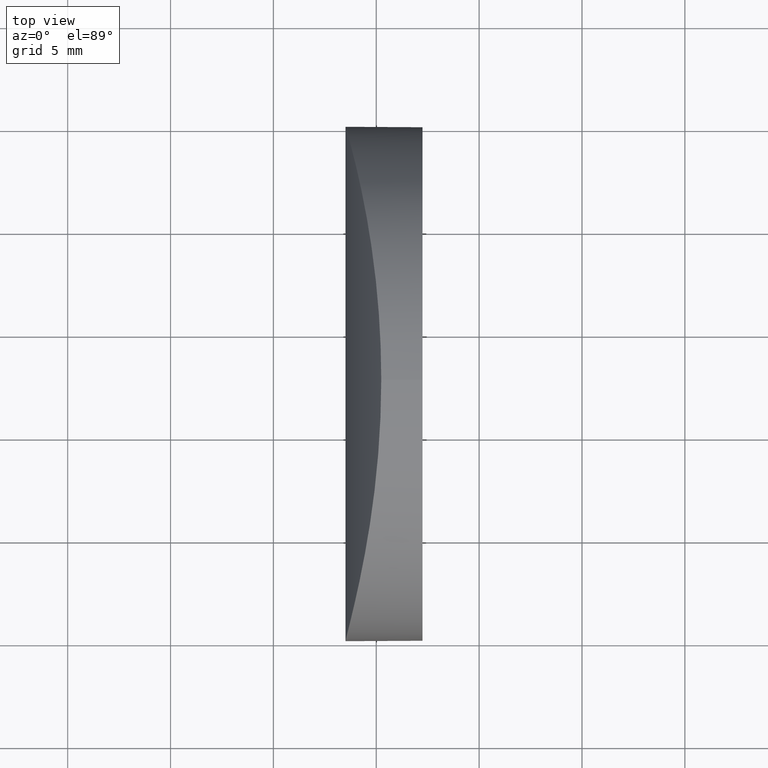
[diagram: clean part render]
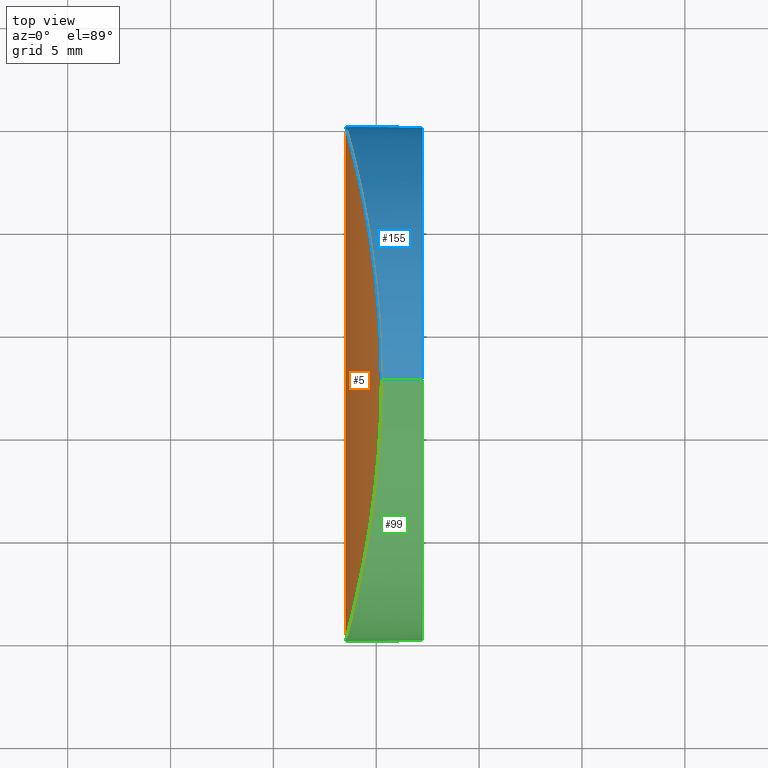
[diagram: same view with three faces highlighted in distinct colors, each labeled with its STEP entity id]
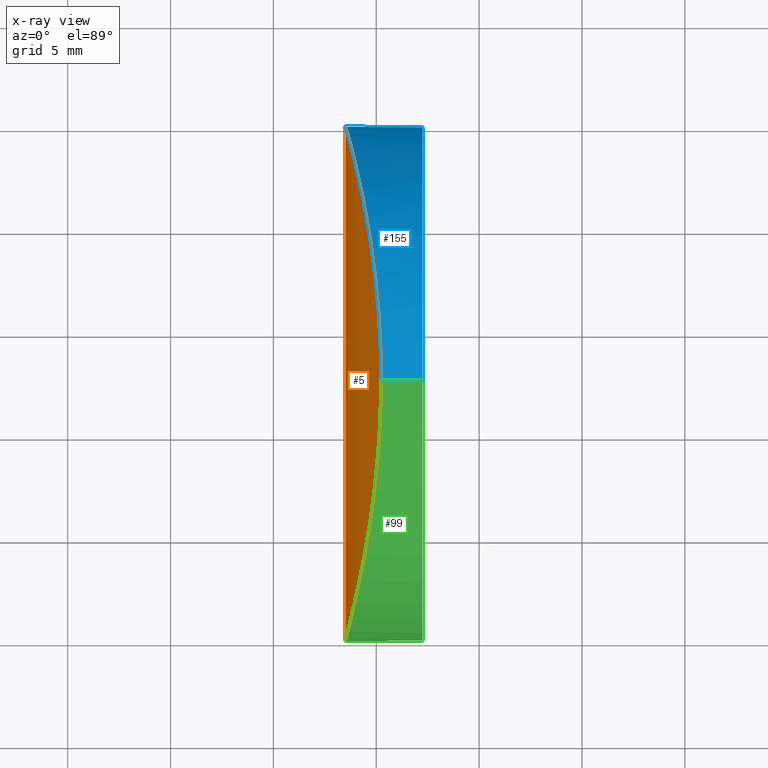
[diagram: x-ray of the same camera — body ghosted, the three highlighted faces saturated]
A machine part, top view with three faces highlighted in distinct colors.
The next image is the same camera in x-ray (body ghosted, the three faces saturated) — at least one of them is partly hidden behind the body in this view.
Their STEP definitions:

[orange] entity #5 — the highlighted cylindrical surface (partial cylindrical patch) has radius 45.85 mm, axis along (-0, -1, -0).
#1 = CARTESIAN_POINT ( 'NONE',  ( -40.40981074628637500, 20.14117542189356800, 9.926530071393383300 ) ) ;
#3 = CARTESIAN_POINT ( 'NONE',  ( -41.47227541527333700, 0.08187468753290343100, 1.649462328477295600 ) ) ;
#4 = CARTESIAN_POINT ( 'NONE',  ( -40.74769843737202300, 21.90019346376650200, 8.249463201825319600 ) ) ;
#5 = ADVANCED_FACE ( 'NONE', ( #136 ), #42, .T. ) ;
#7 = AXIS2_PLACEMENT_3D ( 'NONE', #89, #149, #95 ) ;
#10 = CARTESIAN_POINT ( 'NONE',  ( -41.47231174884528600, 24.91825874518829300, -1.648477865115701000 ) ) ;
#11 = CARTESIAN_POINT ( 'NONE',  ( -40.85875126190188700, 22.41935377838573700, 7.617328986838704600 ) ) ;
#12 = CARTESIAN_POINT ( 'NONE',  ( -41.40713014909924500, 0.3252364939609298500, 2.862738921787991100 ) ) ;
#14 = CARTESIAN_POINT ( 'NONE',  ( -40.69146227948319700, 3.372644177595744500, -8.550186714359906400 ) ) ;
#16 = CARTESIAN_POINT ( 'NONE',  ( -40.19945308360257000, 18.76669924367405800, 10.82332272746035100 ) ) ;
#19 = CARTESIAN_POINT ( 'NONE',  ( -41.15914421943207200, 23.70795793760327200, -5.549559079769303500 ) ) ;
#20 = EDGE_LOOP ( 'NONE', ( #202, #66 ) ) ;
#22 = CARTESIAN_POINT ( 'NONE',  ( -40.40949954594644600, 4.884032656493674900, 9.920395114810899500 ) ) ;
#23 = CARTESIAN_POINT ( 'NONE',  ( -40.05971939913672500, 17.68190137589219200, 11.38258031456807700 ) ) ;
#24 = CARTESIAN_POINT ( 'NONE',  ( -39.75797396823635000, 12.50000000000000000, -12.49999999999999500 ) ) ;
#28 = CARTESIAN_POINT ( 'NONE',  ( -40.25045087620494400, 19.11856090559292200, 10.61192922189760100 ) ) ;
#29 = CARTESIAN_POINT ( 'NONE',  ( -41.49478008651964700, 5.714241159037323700E-005, 0.8303810537890299300 ) ) ;
#30 = CARTESIAN_POINT ( 'NONE',  ( -40.57787232470743500, 3.950853832423538900, 9.128328069932987200 ) ) ;
#31 = CARTESIAN_POINT ( 'NONE',  ( -40.85883580374382300, 2.580260867320088600, -7.616828507646357800 ) ) ;
#33 = CARTESIAN_POINT ( 'NONE',  ( -41.31902395339513100, 24.33959316536583700, 4.030280961046920600 ) ) ;
#35 = CARTESIAN_POINT ( 'NONE',  ( -41.28287526412447800, 0.8002181926572279300, -4.419565303612265500 ) ) ;
#37 = CARTESIAN_POINT ( 'NONE',  ( -39.87526876755185200, 9.257167130157817800, 12.07903556383880300 ) ) ;
#39 = CARTESIAN_POINT ( 'NONE',  ( -39.78138363703382700, 14.14865785695464800, 12.41822967507822100 ) ) ;
#40 = CARTESIAN_POINT ( 'NONE',  ( -40.10421450853452500, 6.950769772324457900, -11.20811745881100100 ) ) ;
#41 = CARTESIAN_POINT ( 'NONE',  ( -39.75797396823634200, 12.50000000000000200, 12.50000000000001600 ) ) ;
#42 = CYLINDRICAL_SURFACE ( 'NONE', #7, 45.84999999999999400 ) ;
#45 = CARTESIAN_POINT ( 'NONE',  ( -39.75797396823634200, 12.50000000000000200, 12.50000000000001600 ) ) ;
#48 = CARTESIAN_POINT ( 'NONE',  ( -39.75797396823635000, 12.50000000000000000, -12.49999999999999500 ) ) ;
#49 = CARTESIAN_POINT ( 'NONE',  ( -41.16360696646697900, 1.271374896589286600, -5.553177967285372500 ) ) ;
#50 = CARTESIAN_POINT ( 'NONE',  ( -39.94159322711093600, 16.54799810164796600, 11.83349651512302900 ) ) ;
#51 = VERTEX_POINT ( 'NONE', #45 ) ;
#52 = CARTESIAN_POINT ( 'NONE',  ( -39.97724646174325600, 16.91981037440734100, -11.69968487437510500 ) ) ;
#53 = CARTESIAN_POINT ( 'NONE',  ( -39.78137013568643700, 10.85553990421994900, 12.41824416496784500 ) ) ;
#54 = CARTESIAN_POINT ( 'NONE',  ( -41.31742595372583800, 24.33342928221472300, -4.048204877943386600 ) ) ;
#55 = CARTESIAN_POINT ( 'NONE',  ( -39.93990403007954600, 8.470379767237860200, 11.83981528377556300 ) ) ;
#56 = CARTESIAN_POINT ( 'NONE',  ( -39.84786806113012900, 9.654126672233067200, 12.17857808979142400 ) ) ;
#57 = CARTESIAN_POINT ( 'NONE',  ( -40.91348439585242900, 2.334848731616490500, -7.286003299864026900 ) ) ;
#58 = CARTESIAN_POINT ( 'NONE',  ( -39.87687106877349700, 9.235566916318399300, -12.07316954048455300 ) ) ;
#59 = CARTESIAN_POINT ( 'NONE',  ( -39.78137270377940400, 14.14454954794391400, -12.41823527853628800 ) ) ;
#60 = B_SPLINE_CURVE_WITH_KNOTS ( 'NONE', 3,
 ( #164, #172, #59, #204, #120, #199, #52, #137, #131, #228, #72, #187, #80, #197, #166, #203, #106, #19, #97, #163, #54, #213, #100, #10, #84, #111, #61, #231, #181, #33, #90, #183, #116, #157, #11, #4, #220, #170, #1, #28, #16, #174, #23, #210, #50, #121, #64, #39, #161, #41 ),
 .UNSPECIFIED., .F., .F.,
 ( 4, 2, 2, 2, 2, 2, 2, 2, 2, 2, 2, 2, 2, 2, 2, 2, 2, 2, 2, 2, 2, 2, 2, 2, 4 ),
 ( -0.01962009222505995900, -0.01716755213092220600, -0.01594128208385332800, -0.01471501203678445000, -0.01226247194264671100, -0.01103620189557784300, -0.009809931848508975800, -0.007357391754371254300, -0.006131121707302393500, -0.004904851660233534500, -0.003678581613164675500, -0.002452311566095818200, 2.285280418963531200E-007, 0.002452768622179610900, 0.003679038669248464700, 0.004905308716317325500, 0.007357848810455043500, 0.008584118857523904300, 0.009810388904592761600, 0.01226292899873049000, 0.01348919904579935400, 0.01471546909286821800, 0.01594173913993708300, 0.01716800918700594700, 0.01962054928114367500 ),
 .UNSPECIFIED. ) ;
#61 = CARTESIAN_POINT ( 'NONE',  ( -41.47230694198130900, 24.91821255446808100, 1.644755517760426900 ) ) ;
#62 = CARTESIAN_POINT ( 'NONE',  ( -40.40987118050991700, 4.858468963129567400, -9.926259674588340700 ) ) ;
#63 = CARTESIAN_POINT ( 'NONE',  ( -41.28159879303637300, 0.8052067444958054300, 4.432507401824517000 ) ) ;
#64 = CARTESIAN_POINT ( 'NONE',  ( -39.84886682178839800, 15.36189632125278400, 12.17496097301642200 ) ) ;
#66 = ORIENTED_EDGE ( 'NONE', *, *, #153, .F. ) ;
#68 = CARTESIAN_POINT ( 'NONE',  ( -41.06931421452763000, 1.655237711688303200, -6.269426488045443300 ) ) ;
#72 = CARTESIAN_POINT ( 'NONE',  ( -40.40956047370495000, 20.11632567045936800, -9.920120848431357900 ) ) ;
#73 = CARTESIAN_POINT ( 'NONE',  ( -41.20245327762449300, 1.117972206545015300, 5.183122077014372700 ) ) ;
#75 = CARTESIAN_POINT ( 'NONE',  ( -39.78138620795968400, 10.85125223138091700, -12.41822078773012100 ) ) ;
#80 = CARTESIAN_POINT ( 'NONE',  ( -40.57794357491967200, 21.04952072279704800, -9.127978223416684900 ) ) ;
#84 = CARTESIAN_POINT ( 'NONE',  ( -41.49479986034122400, 25.00001538796611900, -0.8293385852175854100 ) ) ;
#86 = CARTESIAN_POINT ( 'NONE',  ( -40.74678994590863100, 3.090777050949759600, 8.268834118708671400 ) ) ;
#87 = CARTESIAN_POINT ( 'NONE',  ( -41.31909612708445700, 0.6601286196088498300, -4.029465515363149600 ) ) ;
#89 = CARTESIAN_POINT ( 'NONE',  ( 4.355204334851265500, 25.00000000000000000, 4.286263797015675000E-017 ) ) ;
#90 = CARTESIAN_POINT ( 'NONE',  ( -41.28279941076599600, 24.19948610446284600, 4.420345653005238500 ) ) ;
#91 = VERTEX_POINT ( 'NONE', #48 ) ;
#92 = CARTESIAN_POINT ( 'NONE',  ( -39.75797396823634200, 11.67038368286444500, -12.49999999999999500 ) ) ;
#95 = DIRECTION ( 'NONE',  ( 0.0000000000000000000, 0.0000000000000000000, -1.000000000000000000 ) ) ;
#97 = CARTESIAN_POINT ( 'NONE',  ( -41.20253431121349800, 23.88235193470146800, -5.182412026168286400 ) ) ;
#100 = CARTESIAN_POINT ( 'NONE',  ( -41.40718704324859100, 24.67497719125718100, -2.861832939904598300 ) ) ;
#102 = CARTESIAN_POINT ( 'NONE',  ( -40.05975007251299000, 7.317834524646043400, -11.38246086677629000 ) ) ;
#104 = CARTESIAN_POINT ( 'NONE',  ( -40.25049936943779000, 5.881111828434301400, -10.61172588700871200 ) ) ;
#105 = CARTESIAN_POINT ( 'NONE',  ( -40.09973824098674600, 6.947208656182929200, 11.22879503584278500 ) ) ;
#106 = CARTESIAN_POINT ( 'NONE',  ( -41.06584986205416500, 23.32287213120948300, -6.267484817885328000 ) ) ;
#110 = CARTESIAN_POINT ( 'NONE',  ( -40.85858208098679300, 2.574679324485717100, 7.642767304390766900 ) ) ;
#111 = CARTESIAN_POINT ( 'NONE',  ( -41.49479146878331900, 24.99998460773172200, 0.8298023829748678600 ) ) ;
#112 = CARTESIAN_POINT ( 'NONE',  ( -39.75797396823633500, 11.67042920813946500, 12.50000000000001800 ) ) ;
#116 = CARTESIAN_POINT ( 'NONE',  ( -41.06922826269242000, 23.34440283197263000, 6.270042877520865000 ) ) ;
#120 = CARTESIAN_POINT ( 'NONE',  ( -39.87528133739007100, 15.74300675335200200, -12.07898967575158100 ) ) ;
#121 = CARTESIAN_POINT ( 'NONE',  ( -39.87685832972481800, 15.76425825394837300, 12.07321607757867800 ) ) ;
#122 = CARTESIAN_POINT ( 'NONE',  ( -41.31735428740778800, 0.6668471374472975100, 4.049010135171215600 ) ) ;
#123 = CARTESIAN_POINT ( 'NONE',  ( -39.94161246205185000, 8.451789631913213100, -11.83342464913828700 ) ) ;
#131 = CARTESIAN_POINT ( 'NONE',  ( -40.19618576003333000, 18.76912270463904200, -10.84492621115832200 ) ) ;
#136 = FACE_OUTER_BOUND ( 'NONE', #20, .T. ) ;
#137 = CARTESIAN_POINT ( 'NONE',  ( -40.09977285696967900, 18.05307280506033900, -11.22865896014750000 ) ) ;
#139 = CARTESIAN_POINT ( 'NONE',  ( -41.40817523479380900, 0.3213164059160815700, -2.845433120606741400 ) ) ;
#143 = CARTESIAN_POINT ( 'NONE',  ( -40.52252586448792500, 4.232353852044420600, -9.410276075066512600 ) ) ;
#148 = CARTESIAN_POINT ( 'NONE',  ( -41.38170215612424800, 0.4208672918432435600, -3.242483563943523000 ) ) ;
#149 = DIRECTION ( 'NONE',  ( -0.0000000000000000000, -1.000000000000000000, -0.0000000000000000000 ) ) ;
#152 = CARTESIAN_POINT ( 'NONE',  ( -39.84887664684158200, 9.637948890873355300, -12.17492536457951300 ) ) ;
#153 = EDGE_CURVE ( 'NONE', #51, #91, #169, .T. ) ;
#156 = CARTESIAN_POINT ( 'NONE',  ( -41.47234297407649000, 0.08165509620483903100, -1.643777589883400600 ) ) ;
#157 = CARTESIAN_POINT ( 'NONE',  ( -40.91339909885060400, 22.66477155823447700, 7.286531876408656000 ) ) ;
#161 = CARTESIAN_POINT ( 'NONE',  ( -39.75797396823636400, 13.32957079114168600, 12.50000000000002300 ) ) ;
#163 = CARTESIAN_POINT ( 'NONE',  ( -41.28167410785922400, 24.19508696064257300, -4.431734531465560100 ) ) ;
#164 = CARTESIAN_POINT ( 'NONE',  ( -39.75797396823635000, 12.50000000000000000, -12.49999999999999500 ) ) ;
#166 = CARTESIAN_POINT ( 'NONE',  ( -40.85866643641490000, 22.42570457094309000, -7.642274373346864100 ) ) ;
#169 = B_SPLINE_CURVE_WITH_KNOTS ( 'NONE', 3,
 ( #224, #112, #53, #56, #37, #55, #205, #105, #198, #189, #22, #218, #30, #86, #110, #211, #191, #212, #73, #63, #122, #227, #12, #3, #29, #223, #156, #139, #148, #87, #35, #49, #68, #57, #31, #214, #14, #143, #62, #104, #221, #40, #102, #207, #123, #58, #152, #75, #92, #24 ),
 .UNSPECIFIED., .F., .F.,
 ( 4, 2, 2, 2, 2, 2, 2, 2, 2, 2, 2, 2, 2, 2, 2, 2, 2, 2, 2, 2, 2, 2, 2, 2, 4 ),
 ( 0.01962054928114367500, 0.02207308937740664100, 0.02329935942553812400, 0.02452562947366960400, 0.02697816956993256600, 0.02820443961806404600, 0.02943070966619552500, 0.03188324976245848800, 0.03310951981058996700, 0.03433578985872144700, 0.03556205990685292600, 0.03678832995498440600, 0.03924087005124737200, 0.04169341014751033700, 0.04291968019564182400, 0.04414595024377330300, 0.04659849034003626900, 0.04782476038816774200, 0.04905103043629922100, 0.05150357053256218700, 0.05272984058069367400, 0.05395611062882514600, 0.05518238067695663300, 0.05640865072508811900, 0.05886119082135107800 ),
 .UNSPECIFIED. ) ;
#170 = CARTESIAN_POINT ( 'NONE',  ( -40.52245788481211300, 20.76727667160644200, 9.410596722587605700 ) ) ;
#172 = CARTESIAN_POINT ( 'NONE',  ( -39.75797396823635000, 13.32961631641665300, -12.49999999999999300 ) ) ;
#174 = CARTESIAN_POINT ( 'NONE',  ( -40.10417965152584700, 18.04895000725419500, 11.20825535444381800 ) ) ;
#181 = CARTESIAN_POINT ( 'NONE',  ( -41.38164032798786700, 24.57889880358332800, 3.243352376654096600 ) ) ;
#183 = CARTESIAN_POINT ( 'NONE',  ( -41.16352304008922400, 23.72828565402272400, 5.553856720686323600 ) ) ;
#187 = CARTESIAN_POINT ( 'NONE',  ( -40.52142329392722800, 20.74839109676491200, -9.401130712887148600 ) ) ;
#189 = CARTESIAN_POINT ( 'NONE',  ( -40.35424019949243800, 5.214814155512971900, 10.16573308246250600 ) ) ;
#191 = CARTESIAN_POINT ( 'NONE',  ( -41.06576401606125900, 1.677487953051960200, 6.268105235509986900 ) ) ;
#196 = EDGE_CURVE ( 'NONE', #91, #51, #60, .T. ) ;
#197 = CARTESIAN_POINT ( 'NONE',  ( -40.74686991871537600, 21.90960658088179300, -8.268401788728445100 ) ) ;
#198 = CARTESIAN_POINT ( 'NONE',  ( -40.19614245402560500, 6.231187546320915000, 10.84510202768716000 ) ) ;
#199 = CARTESIAN_POINT ( 'NONE',  ( -39.93992338408450100, 16.52983493914734200, -11.83974301885084300 ) ) ;
#202 = ORIENTED_EDGE ( 'NONE', *, *, #196, .F. ) ;
#203 = CARTESIAN_POINT ( 'NONE',  ( -41.01576519555455000, 23.11140313088864700, -6.619412043418631000 ) ) ;
#204 = CARTESIAN_POINT ( 'NONE',  ( -39.84787772503533900, 15.34602639222396700, -12.17854307530034700 ) ) ;
#205 = CARTESIAN_POINT ( 'NONE',  ( -39.97722342928565100, 8.080422018546771700, 11.69977191581479100 ) ) ;
#207 = CARTESIAN_POINT ( 'NONE',  ( -39.97844996376130700, 8.068344838032391700, -11.69511380547662300 ) ) ;
#210 = CARTESIAN_POINT ( 'NONE',  ( -39.97842710117982500, 16.93142503934650700, 11.69520023803435600 ) ) ;
#211 = CARTESIAN_POINT ( 'NONE',  ( -41.01567806076394600, 1.888969349283760900, 6.620007490537670200 ) ) ;
#212 = CARTESIAN_POINT ( 'NONE',  ( -41.15906111625854200, 1.292379350378370700, 5.550238699726164300 ) ) ;
#213 = CARTESIAN_POINT ( 'NONE',  ( -41.38013907325561300, 24.57321530320695800, -3.264273817159159200 ) ) ;
#214 = CARTESIAN_POINT ( 'NONE',  ( -40.74777844493127100, 3.099422653937979900, -8.249027005412267900 ) ) ;
#218 = CARTESIAN_POINT ( 'NONE',  ( -40.52135531610361600, 4.251978955679103200, 9.401454497244479600 ) ) ;
#220 = CARTESIAN_POINT ( 'NONE',  ( -40.69138502274280000, 21.62697442022153300, 8.550592756799870700 ) ) ;
#221 = CARTESIAN_POINT ( 'NONE',  ( -40.19949665565188500, 6.232990140323598100, -10.82314374426260700 ) ) ;
#223 = CARTESIAN_POINT ( 'NONE',  ( -41.49481122762333700, -5.708315694098071400E-005, -0.8286597946595603000 ) ) ;
#224 = CARTESIAN_POINT ( 'NONE',  ( -39.75797396823634200, 12.50000000000000200, 12.50000000000001600 ) ) ;
#227 = CARTESIAN_POINT ( 'NONE',  ( -41.38007651411484000, 0.4270214984597126000, 3.265146221014376700 ) ) ;
#228 = CARTESIAN_POINT ( 'NONE',  ( -40.35429663129986700, 19.78553269617800600, -10.16548544515920000 ) ) ;
#231 = CARTESIAN_POINT ( 'NONE',  ( -41.40811929074290300, 24.67847353184294300, 2.846328929426299700 ) ) ;

[blue] entity #155 — the highlighted cylindrical surface (partial cylindrical patch) has radius 12.5 mm, axis along (1, -0, -0).
#1 = CARTESIAN_POINT ( 'NONE',  ( -40.40981074628637500, 20.14117542189356800, 9.926530071393383300 ) ) ;
#4 = CARTESIAN_POINT ( 'NONE',  ( -40.74769843737202300, 21.90019346376650200, 8.249463201825319600 ) ) ;
#6 = DIRECTION ( 'NONE',  ( 1.000000000000000000, -0.0000000000000000000, -2.775557561562888400E-016 ) ) ;
#10 = CARTESIAN_POINT ( 'NONE',  ( -41.47231174884528600, 24.91825874518829300, -1.648477865115701000 ) ) ;
#11 = CARTESIAN_POINT ( 'NONE',  ( -40.85875126190188700, 22.41935377838573700, 7.617328986838704600 ) ) ;
#15 = DIRECTION ( 'NONE',  ( 1.000000000000000000, -0.0000000000000000000, -2.775557561562888400E-016 ) ) ;
#16 = CARTESIAN_POINT ( 'NONE',  ( -40.19945308360257000, 18.76669924367405800, 10.82332272746035100 ) ) ;
#18 = CIRCLE ( 'NONE', #98, 12.50000000000000500 ) ;
#19 = CARTESIAN_POINT ( 'NONE',  ( -41.15914421943207200, 23.70795793760327200, -5.549559079769303500 ) ) ;
#23 = CARTESIAN_POINT ( 'NONE',  ( -40.05971939913672500, 17.68190137589219200, 11.38258031456807700 ) ) ;
#28 = CARTESIAN_POINT ( 'NONE',  ( -40.25045087620494400, 19.11856090559292200, 10.61192922189760100 ) ) ;
#33 = CARTESIAN_POINT ( 'NONE',  ( -41.31902395339513100, 24.33959316536583700, 4.030280961046920600 ) ) ;
#34 = VERTEX_POINT ( 'NONE', #132 ) ;
#39 = CARTESIAN_POINT ( 'NONE',  ( -39.78138363703382700, 14.14865785695464800, 12.41822967507822100 ) ) ;
#41 = CARTESIAN_POINT ( 'NONE',  ( -39.75797396823634200, 12.50000000000000200, 12.50000000000001600 ) ) ;
#45 = CARTESIAN_POINT ( 'NONE',  ( -39.75797396823634200, 12.50000000000000200, 12.50000000000001600 ) ) ;
#46 = ORIENTED_EDGE ( 'NONE', *, *, #232, .F. ) ;
#48 = CARTESIAN_POINT ( 'NONE',  ( -39.75797396823635000, 12.50000000000000000, -12.49999999999999500 ) ) ;
#50 = CARTESIAN_POINT ( 'NONE',  ( -39.94159322711093600, 16.54799810164796600, 11.83349651512302900 ) ) ;
#51 = VERTEX_POINT ( 'NONE', #45 ) ;
#52 = CARTESIAN_POINT ( 'NONE',  ( -39.97724646174325600, 16.91981037440734100, -11.69968487437510500 ) ) ;
#54 = CARTESIAN_POINT ( 'NONE',  ( -41.31742595372583800, 24.33342928221472300, -4.048204877943386600 ) ) ;
#59 = CARTESIAN_POINT ( 'NONE',  ( -39.78137270377940400, 14.14454954794391400, -12.41823527853628800 ) ) ;
#60 = B_SPLINE_CURVE_WITH_KNOTS ( 'NONE', 3,
 ( #164, #172, #59, #204, #120, #199, #52, #137, #131, #228, #72, #187, #80, #197, #166, #203, #106, #19, #97, #163, #54, #213, #100, #10, #84, #111, #61, #231, #181, #33, #90, #183, #116, #157, #11, #4, #220, #170, #1, #28, #16, #174, #23, #210, #50, #121, #64, #39, #161, #41 ),
 .UNSPECIFIED., .F., .F.,
 ( 4, 2, 2, 2, 2, 2, 2, 2, 2, 2, 2, 2, 2, 2, 2, 2, 2, 2, 2, 2, 2, 2, 2, 2, 4 ),
 ( -0.01962009222505995900, -0.01716755213092220600, -0.01594128208385332800, -0.01471501203678445000, -0.01226247194264671100, -0.01103620189557784300, -0.009809931848508975800, -0.007357391754371254300, -0.006131121707302393500, -0.004904851660233534500, -0.003678581613164675500, -0.002452311566095818200, 2.285280418963531200E-007, 0.002452768622179610900, 0.003679038669248464700, 0.004905308716317325500, 0.007357848810455043500, 0.008584118857523904300, 0.009810388904592761600, 0.01226292899873049000, 0.01348919904579935400, 0.01471546909286821800, 0.01594173913993708300, 0.01716800918700594700, 0.01962054928114367500 ),
 .UNSPECIFIED. ) ;
#61 = CARTESIAN_POINT ( 'NONE',  ( -41.47230694198130900, 24.91821255446808100, 1.644755517760426900 ) ) ;
#64 = CARTESIAN_POINT ( 'NONE',  ( -39.84886682178839800, 15.36189632125278400, 12.17496097301642200 ) ) ;
#65 = EDGE_CURVE ( 'NONE', #51, #177, #144, .T. ) ;
#72 = CARTESIAN_POINT ( 'NONE',  ( -40.40956047370495000, 20.11632567045936800, -9.920120848431357900 ) ) ;
#80 = CARTESIAN_POINT ( 'NONE',  ( -40.57794357491967200, 21.04952072279704800, -9.127978223416684900 ) ) ;
#84 = CARTESIAN_POINT ( 'NONE',  ( -41.49479986034122400, 25.00001538796611900, -0.8293385852175854100 ) ) ;
#90 = CARTESIAN_POINT ( 'NONE',  ( -41.28279941076599600, 24.19948610446284600, 4.420345653005238500 ) ) ;
#91 = VERTEX_POINT ( 'NONE', #48 ) ;
#97 = CARTESIAN_POINT ( 'NONE',  ( -41.20253431121349800, 23.88235193470146800, -5.182412026168286400 ) ) ;
#98 = AXIS2_PLACEMENT_3D ( 'NONE', #158, #180, #195 ) ;
#100 = CARTESIAN_POINT ( 'NONE',  ( -41.40718704324859100, 24.67497719125718100, -2.861832939904598300 ) ) ;
#101 = DIRECTION ( 'NONE',  ( 1.000000000000000000, -0.0000000000000000000, -2.775557561562888400E-016 ) ) ;
#106 = CARTESIAN_POINT ( 'NONE',  ( -41.06584986205416500, 23.32287213120948300, -6.267484817885328000 ) ) ;
#107 = ORIENTED_EDGE ( 'NONE', *, *, #196, .T. ) ;
#108 = ORIENTED_EDGE ( 'NONE', *, *, #219, .F. ) ;
#111 = CARTESIAN_POINT ( 'NONE',  ( -41.49479146878331900, 24.99998460773172200, 0.8298023829748678600 ) ) ;
#113 = ORIENTED_EDGE ( 'NONE', *, *, #65, .T. ) ;
#116 = CARTESIAN_POINT ( 'NONE',  ( -41.06922826269242000, 23.34440283197263000, 6.270042877520865000 ) ) ;
#120 = CARTESIAN_POINT ( 'NONE',  ( -39.87528133739007100, 15.74300675335200200, -12.07898967575158100 ) ) ;
#121 = CARTESIAN_POINT ( 'NONE',  ( -39.87685832972481800, 15.76425825394837300, 12.07321607757867800 ) ) ;
#129 = CYLINDRICAL_SURFACE ( 'NONE', #186, 12.50000000000000500 ) ;
#130 = CARTESIAN_POINT ( 'NONE',  ( -50.45479566514873700, 12.50000000000000200, 12.50000000000002000 ) ) ;
#131 = CARTESIAN_POINT ( 'NONE',  ( -40.19618576003333000, 18.76912270463904200, -10.84492621115832200 ) ) ;
#132 = CARTESIAN_POINT ( 'NONE',  ( -37.75479566514873400, 12.50000000000000000, -12.49999999999999500 ) ) ;
#137 = CARTESIAN_POINT ( 'NONE',  ( -40.09977285696967900, 18.05307280506033900, -11.22865896014750000 ) ) ;
#144 = LINE ( 'NONE', #130, #215 ) ;
#154 = CARTESIAN_POINT ( 'NONE',  ( -50.45479566514873700, 12.50000000000000000, 1.400401896255141200E-014 ) ) ;
#155 = ADVANCED_FACE ( 'NONE', ( #168 ), #129, .T. ) ;
#157 = CARTESIAN_POINT ( 'NONE',  ( -40.91339909885060400, 22.66477155823447700, 7.286531876408656000 ) ) ;
#158 = CARTESIAN_POINT ( 'NONE',  ( -37.75479566514873400, 12.50000000000000000, 1.047906085936654300E-014 ) ) ;
#161 = CARTESIAN_POINT ( 'NONE',  ( -39.75797396823636400, 13.32957079114168600, 12.50000000000002300 ) ) ;
#163 = CARTESIAN_POINT ( 'NONE',  ( -41.28167410785922400, 24.19508696064257300, -4.431734531465560100 ) ) ;
#164 = CARTESIAN_POINT ( 'NONE',  ( -39.75797396823635000, 12.50000000000000000, -12.49999999999999500 ) ) ;
#166 = CARTESIAN_POINT ( 'NONE',  ( -40.85866643641490000, 22.42570457094309000, -7.642274373346864100 ) ) ;
#168 = FACE_OUTER_BOUND ( 'NONE', #209, .T. ) ;
#170 = CARTESIAN_POINT ( 'NONE',  ( -40.52245788481211300, 20.76727667160644200, 9.410596722587605700 ) ) ;
#172 = CARTESIAN_POINT ( 'NONE',  ( -39.75797396823635000, 13.32961631641665300, -12.49999999999999300 ) ) ;
#174 = CARTESIAN_POINT ( 'NONE',  ( -40.10417965152584700, 18.04895000725419500, 11.20825535444381800 ) ) ;
#177 = VERTEX_POINT ( 'NONE', #201 ) ;
#180 = DIRECTION ( 'NONE',  ( 1.000000000000000000, -4.930380657631322700E-032, -2.510324564891253900E-016 ) ) ;
#181 = CARTESIAN_POINT ( 'NONE',  ( -41.38164032798786700, 24.57889880358332800, 3.243352376654096600 ) ) ;
#183 = CARTESIAN_POINT ( 'NONE',  ( -41.16352304008922400, 23.72828565402272400, 5.553856720686323600 ) ) ;
#184 = DIRECTION ( 'NONE',  ( 0.0000000000000000000, 0.0000000000000000000, -1.000000000000000000 ) ) ;
#185 = CARTESIAN_POINT ( 'NONE',  ( -50.45479566514873700, 12.50000000000000000, -12.49999999999999300 ) ) ;
#186 = AXIS2_PLACEMENT_3D ( 'NONE', #154, #6, #184 ) ;
#187 = CARTESIAN_POINT ( 'NONE',  ( -40.52142329392722800, 20.74839109676491200, -9.401130712887148600 ) ) ;
#192 = LINE ( 'NONE', #185, #225 ) ;
#195 = DIRECTION ( 'NONE',  ( 0.0000000000000000000, 0.0000000000000000000, -1.000000000000000000 ) ) ;
#196 = EDGE_CURVE ( 'NONE', #91, #51, #60, .T. ) ;
#197 = CARTESIAN_POINT ( 'NONE',  ( -40.74686991871537600, 21.90960658088179300, -8.268401788728445100 ) ) ;
#199 = CARTESIAN_POINT ( 'NONE',  ( -39.93992338408450100, 16.52983493914734200, -11.83974301885084300 ) ) ;
#201 = CARTESIAN_POINT ( 'NONE',  ( -37.75479566514873400, 12.50000000000000200, 12.50000000000001600 ) ) ;
#203 = CARTESIAN_POINT ( 'NONE',  ( -41.01576519555455000, 23.11140313088864700, -6.619412043418631000 ) ) ;
#204 = CARTESIAN_POINT ( 'NONE',  ( -39.84787772503533900, 15.34602639222396700, -12.17854307530034700 ) ) ;
#209 = EDGE_LOOP ( 'NONE', ( #107, #113, #108, #46 ) ) ;
#210 = CARTESIAN_POINT ( 'NONE',  ( -39.97842710117982500, 16.93142503934650700, 11.69520023803435600 ) ) ;
#213 = CARTESIAN_POINT ( 'NONE',  ( -41.38013907325561300, 24.57321530320695800, -3.264273817159159200 ) ) ;
#215 = VECTOR ( 'NONE', #15, 1000.000000000000000 ) ;
#219 = EDGE_CURVE ( 'NONE', #34, #177, #18, .T. ) ;
#220 = CARTESIAN_POINT ( 'NONE',  ( -40.69138502274280000, 21.62697442022153300, 8.550592756799870700 ) ) ;
#225 = VECTOR ( 'NONE', #101, 1000.000000000000000 ) ;
#228 = CARTESIAN_POINT ( 'NONE',  ( -40.35429663129986700, 19.78553269617800600, -10.16548544515920000 ) ) ;
#231 = CARTESIAN_POINT ( 'NONE',  ( -41.40811929074290300, 24.67847353184294300, 2.846328929426299700 ) ) ;
#232 = EDGE_CURVE ( 'NONE', #91, #34, #192, .T. ) ;

[green] entity #99 — the highlighted cylindrical surface (partial cylindrical patch) has radius 12.5 mm, axis along (1, -0, -0).
#3 = CARTESIAN_POINT ( 'NONE',  ( -41.47227541527333700, 0.08187468753290343100, 1.649462328477295600 ) ) ;
#12 = CARTESIAN_POINT ( 'NONE',  ( -41.40713014909924500, 0.3252364939609298500, 2.862738921787991100 ) ) ;
#13 = ORIENTED_EDGE ( 'NONE', *, *, #232, .T. ) ;
#14 = CARTESIAN_POINT ( 'NONE',  ( -40.69146227948319700, 3.372644177595744500, -8.550186714359906400 ) ) ;
#15 = DIRECTION ( 'NONE',  ( 1.000000000000000000, -0.0000000000000000000, -2.775557561562888400E-016 ) ) ;
#22 = CARTESIAN_POINT ( 'NONE',  ( -40.40949954594644600, 4.884032656493674900, 9.920395114810899500 ) ) ;
#24 = CARTESIAN_POINT ( 'NONE',  ( -39.75797396823635000, 12.50000000000000000, -12.49999999999999500 ) ) ;
#29 = CARTESIAN_POINT ( 'NONE',  ( -41.49478008651964700, 5.714241159037323700E-005, 0.8303810537890299300 ) ) ;
#30 = CARTESIAN_POINT ( 'NONE',  ( -40.57787232470743500, 3.950853832423538900, 9.128328069932987200 ) ) ;
#31 = CARTESIAN_POINT ( 'NONE',  ( -40.85883580374382300, 2.580260867320088600, -7.616828507646357800 ) ) ;
#34 = VERTEX_POINT ( 'NONE', #132 ) ;
#35 = CARTESIAN_POINT ( 'NONE',  ( -41.28287526412447800, 0.8002181926572279300, -4.419565303612265500 ) ) ;
#37 = CARTESIAN_POINT ( 'NONE',  ( -39.87526876755185200, 9.257167130157817800, 12.07903556383880300 ) ) ;
#40 = CARTESIAN_POINT ( 'NONE',  ( -40.10421450853452500, 6.950769772324457900, -11.20811745881100100 ) ) ;
#43 = DIRECTION ( 'NONE',  ( 0.0000000000000000000, 0.0000000000000000000, -1.000000000000000000 ) ) ;
#45 = CARTESIAN_POINT ( 'NONE',  ( -39.75797396823634200, 12.50000000000000200, 12.50000000000001600 ) ) ;
#48 = CARTESIAN_POINT ( 'NONE',  ( -39.75797396823635000, 12.50000000000000000, -12.49999999999999500 ) ) ;
#49 = CARTESIAN_POINT ( 'NONE',  ( -41.16360696646697900, 1.271374896589286600, -5.553177967285372500 ) ) ;
#51 = VERTEX_POINT ( 'NONE', #45 ) ;
#53 = CARTESIAN_POINT ( 'NONE',  ( -39.78137013568643700, 10.85553990421994900, 12.41824416496784500 ) ) ;
#55 = CARTESIAN_POINT ( 'NONE',  ( -39.93990403007954600, 8.470379767237860200, 11.83981528377556300 ) ) ;
#56 = CARTESIAN_POINT ( 'NONE',  ( -39.84786806113012900, 9.654126672233067200, 12.17857808979142400 ) ) ;
#57 = CARTESIAN_POINT ( 'NONE',  ( -40.91348439585242900, 2.334848731616490500, -7.286003299864026900 ) ) ;
#58 = CARTESIAN_POINT ( 'NONE',  ( -39.87687106877349700, 9.235566916318399300, -12.07316954048455300 ) ) ;
#62 = CARTESIAN_POINT ( 'NONE',  ( -40.40987118050991700, 4.858468963129567400, -9.926259674588340700 ) ) ;
#63 = CARTESIAN_POINT ( 'NONE',  ( -41.28159879303637300, 0.8052067444958054300, 4.432507401824517000 ) ) ;
#65 = EDGE_CURVE ( 'NONE', #51, #177, #144, .T. ) ;
#68 = CARTESIAN_POINT ( 'NONE',  ( -41.06931421452763000, 1.655237711688303200, -6.269426488045443300 ) ) ;
#69 = DIRECTION ( 'NONE',  ( 1.000000000000000000, -4.930380657631322700E-032, -2.510324564891253900E-016 ) ) ;
#73 = CARTESIAN_POINT ( 'NONE',  ( -41.20245327762449300, 1.117972206545015300, 5.183122077014372700 ) ) ;
#75 = CARTESIAN_POINT ( 'NONE',  ( -39.78138620795968400, 10.85125223138091700, -12.41822078773012100 ) ) ;
#76 = DIRECTION ( 'NONE',  ( 1.000000000000000000, -0.0000000000000000000, -2.775557561562888400E-016 ) ) ;
#79 = AXIS2_PLACEMENT_3D ( 'NONE', #83, #76, #43 ) ;
#83 = CARTESIAN_POINT ( 'NONE',  ( -50.45479566514873700, 12.50000000000000000, 1.400401896255141200E-014 ) ) ;
#85 = EDGE_CURVE ( 'NONE', #177, #34, #171, .T. ) ;
#86 = CARTESIAN_POINT ( 'NONE',  ( -40.74678994590863100, 3.090777050949759600, 8.268834118708671400 ) ) ;
#87 = CARTESIAN_POINT ( 'NONE',  ( -41.31909612708445700, 0.6601286196088498300, -4.029465515363149600 ) ) ;
#91 = VERTEX_POINT ( 'NONE', #48 ) ;
#92 = CARTESIAN_POINT ( 'NONE',  ( -39.75797396823634200, 11.67038368286444500, -12.49999999999999500 ) ) ;
#93 = ORIENTED_EDGE ( 'NONE', *, *, #85, .F. ) ;
#99 = ADVANCED_FACE ( 'NONE', ( #208 ), #146, .T. ) ;
#101 = DIRECTION ( 'NONE',  ( 1.000000000000000000, -0.0000000000000000000, -2.775557561562888400E-016 ) ) ;
#102 = CARTESIAN_POINT ( 'NONE',  ( -40.05975007251299000, 7.317834524646043400, -11.38246086677629000 ) ) ;
#104 = CARTESIAN_POINT ( 'NONE',  ( -40.25049936943779000, 5.881111828434301400, -10.61172588700871200 ) ) ;
#105 = CARTESIAN_POINT ( 'NONE',  ( -40.09973824098674600, 6.947208656182929200, 11.22879503584278500 ) ) ;
#110 = CARTESIAN_POINT ( 'NONE',  ( -40.85858208098679300, 2.574679324485717100, 7.642767304390766900 ) ) ;
#112 = CARTESIAN_POINT ( 'NONE',  ( -39.75797396823633500, 11.67042920813946500, 12.50000000000001800 ) ) ;
#117 = ORIENTED_EDGE ( 'NONE', *, *, #153, .T. ) ;
#118 = ORIENTED_EDGE ( 'NONE', *, *, #65, .F. ) ;
#122 = CARTESIAN_POINT ( 'NONE',  ( -41.31735428740778800, 0.6668471374472975100, 4.049010135171215600 ) ) ;
#123 = CARTESIAN_POINT ( 'NONE',  ( -39.94161246205185000, 8.451789631913213100, -11.83342464913828700 ) ) ;
#125 = DIRECTION ( 'NONE',  ( 0.0000000000000000000, 0.0000000000000000000, -1.000000000000000000 ) ) ;
#130 = CARTESIAN_POINT ( 'NONE',  ( -50.45479566514873700, 12.50000000000000200, 12.50000000000002000 ) ) ;
#132 = CARTESIAN_POINT ( 'NONE',  ( -37.75479566514873400, 12.50000000000000000, -12.49999999999999500 ) ) ;
#139 = CARTESIAN_POINT ( 'NONE',  ( -41.40817523479380900, 0.3213164059160815700, -2.845433120606741400 ) ) ;
#143 = CARTESIAN_POINT ( 'NONE',  ( -40.52252586448792500, 4.232353852044420600, -9.410276075066512600 ) ) ;
#144 = LINE ( 'NONE', #130, #215 ) ;
#146 = CYLINDRICAL_SURFACE ( 'NONE', #79, 12.50000000000000500 ) ;
#148 = CARTESIAN_POINT ( 'NONE',  ( -41.38170215612424800, 0.4208672918432435600, -3.242483563943523000 ) ) ;
#152 = CARTESIAN_POINT ( 'NONE',  ( -39.84887664684158200, 9.637948890873355300, -12.17492536457951300 ) ) ;
#153 = EDGE_CURVE ( 'NONE', #51, #91, #169, .T. ) ;
#156 = CARTESIAN_POINT ( 'NONE',  ( -41.47234297407649000, 0.08165509620483903100, -1.643777589883400600 ) ) ;
#169 = B_SPLINE_CURVE_WITH_KNOTS ( 'NONE', 3,
 ( #224, #112, #53, #56, #37, #55, #205, #105, #198, #189, #22, #218, #30, #86, #110, #211, #191, #212, #73, #63, #122, #227, #12, #3, #29, #223, #156, #139, #148, #87, #35, #49, #68, #57, #31, #214, #14, #143, #62, #104, #221, #40, #102, #207, #123, #58, #152, #75, #92, #24 ),
 .UNSPECIFIED., .F., .F.,
 ( 4, 2, 2, 2, 2, 2, 2, 2, 2, 2, 2, 2, 2, 2, 2, 2, 2, 2, 2, 2, 2, 2, 2, 2, 4 ),
 ( 0.01962054928114367500, 0.02207308937740664100, 0.02329935942553812400, 0.02452562947366960400, 0.02697816956993256600, 0.02820443961806404600, 0.02943070966619552500, 0.03188324976245848800, 0.03310951981058996700, 0.03433578985872144700, 0.03556205990685292600, 0.03678832995498440600, 0.03924087005124737200, 0.04169341014751033700, 0.04291968019564182400, 0.04414595024377330300, 0.04659849034003626900, 0.04782476038816774200, 0.04905103043629922100, 0.05150357053256218700, 0.05272984058069367400, 0.05395611062882514600, 0.05518238067695663300, 0.05640865072508811900, 0.05886119082135107800 ),
 .UNSPECIFIED. ) ;
#171 = CIRCLE ( 'NONE', #173, 12.50000000000000500 ) ;
#173 = AXIS2_PLACEMENT_3D ( 'NONE', #230, #69, #125 ) ;
#177 = VERTEX_POINT ( 'NONE', #201 ) ;
#185 = CARTESIAN_POINT ( 'NONE',  ( -50.45479566514873700, 12.50000000000000000, -12.49999999999999300 ) ) ;
#189 = CARTESIAN_POINT ( 'NONE',  ( -40.35424019949243800, 5.214814155512971900, 10.16573308246250600 ) ) ;
#191 = CARTESIAN_POINT ( 'NONE',  ( -41.06576401606125900, 1.677487953051960200, 6.268105235509986900 ) ) ;
#192 = LINE ( 'NONE', #185, #225 ) ;
#198 = CARTESIAN_POINT ( 'NONE',  ( -40.19614245402560500, 6.231187546320915000, 10.84510202768716000 ) ) ;
#201 = CARTESIAN_POINT ( 'NONE',  ( -37.75479566514873400, 12.50000000000000200, 12.50000000000001600 ) ) ;
#205 = CARTESIAN_POINT ( 'NONE',  ( -39.97722342928565100, 8.080422018546771700, 11.69977191581479100 ) ) ;
#207 = CARTESIAN_POINT ( 'NONE',  ( -39.97844996376130700, 8.068344838032391700, -11.69511380547662300 ) ) ;
#208 = FACE_OUTER_BOUND ( 'NONE', #222, .T. ) ;
#211 = CARTESIAN_POINT ( 'NONE',  ( -41.01567806076394600, 1.888969349283760900, 6.620007490537670200 ) ) ;
#212 = CARTESIAN_POINT ( 'NONE',  ( -41.15906111625854200, 1.292379350378370700, 5.550238699726164300 ) ) ;
#214 = CARTESIAN_POINT ( 'NONE',  ( -40.74777844493127100, 3.099422653937979900, -8.249027005412267900 ) ) ;
#215 = VECTOR ( 'NONE', #15, 1000.000000000000000 ) ;
#218 = CARTESIAN_POINT ( 'NONE',  ( -40.52135531610361600, 4.251978955679103200, 9.401454497244479600 ) ) ;
#221 = CARTESIAN_POINT ( 'NONE',  ( -40.19949665565188500, 6.232990140323598100, -10.82314374426260700 ) ) ;
#222 = EDGE_LOOP ( 'NONE', ( #118, #117, #13, #93 ) ) ;
#223 = CARTESIAN_POINT ( 'NONE',  ( -41.49481122762333700, -5.708315694098071400E-005, -0.8286597946595603000 ) ) ;
#224 = CARTESIAN_POINT ( 'NONE',  ( -39.75797396823634200, 12.50000000000000200, 12.50000000000001600 ) ) ;
#225 = VECTOR ( 'NONE', #101, 1000.000000000000000 ) ;
#227 = CARTESIAN_POINT ( 'NONE',  ( -41.38007651411484000, 0.4270214984597126000, 3.265146221014376700 ) ) ;
#230 = CARTESIAN_POINT ( 'NONE',  ( -37.75479566514873400, 12.50000000000000000, 1.047906085936654300E-014 ) ) ;
#232 = EDGE_CURVE ( 'NONE', #91, #34, #192, .T. ) ;